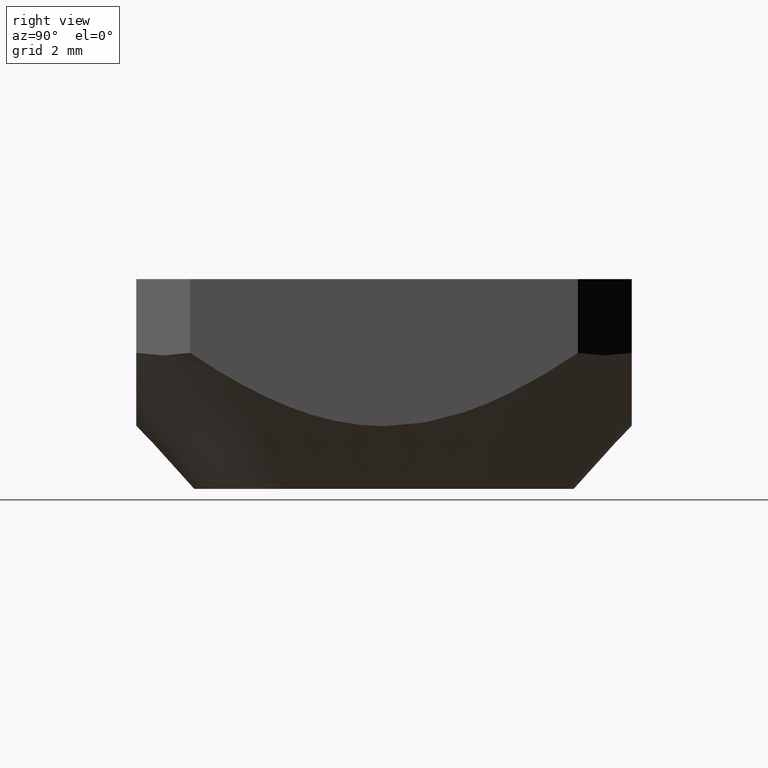
[diagram: clean part render]
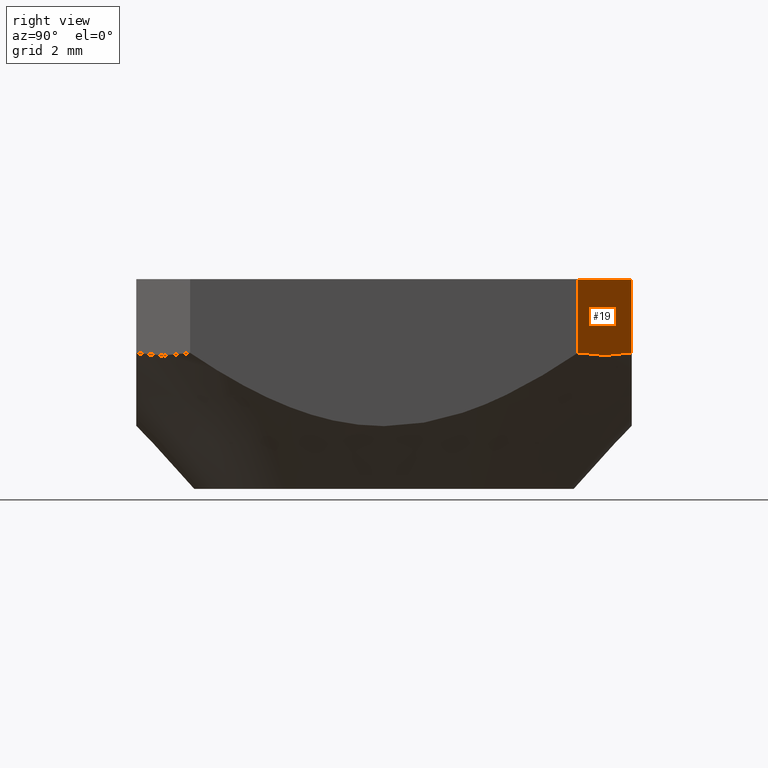
[diagram: same view with one face highlighted and labeled with its STEP entity id]
A machine part, right view. The second image highlights one B-rep face of the part: STEP entity #19.
In plain terms, the highlighted planar face has unit normal (0.7071, 0.7071, 0).
Its self-contained STEP definition (entity closure, byte-faithful):
#5 = CARTESIAN_POINT ( 'NONE',  ( 6.500000000000002665, 5.085786437626907741, 0.0000000000000000000 ) ) ;
#12 = CARTESIAN_POINT ( 'NONE',  ( 6.500000000012471801, 5.085786437614437716, -1.933334202284715309 ) ) ;
#19 = ADVANCED_FACE ( 'NONE', ( #497 ), #306, .T. ) ;
#34 = CARTESIAN_POINT ( 'NONE',  ( 6.500000000012471801, 5.085786437614437716, -1.933334202284715309 ) ) ;
#35 = CARTESIAN_POINT ( 'NONE',  ( 5.085786437626906853, 6.500000000000003553, 0.0000000000000000000 ) ) ;
#51 = EDGE_CURVE ( 'NONE', #155, #491, #305, .T. ) ;
#53 = ORIENTED_EDGE ( 'NONE', *, *, #118, .F. ) ;
#54 = DIRECTION ( 'NONE',  ( -0.7071067811865474617, 0.7071067811865474617, 0.0000000000000000000 ) ) ;
#118 = EDGE_CURVE ( 'NONE', #444, #155, #349, .T. ) ;
#136 = DIRECTION ( 'NONE',  ( -0.0000000000000000000, -0.0000000000000000000, 1.000000000000000000 ) ) ;
#143 = VECTOR ( 'NONE', #540, 1000.000000000000114 ) ;
#155 = VERTEX_POINT ( 'NONE', #281 ) ;
#165 = CARTESIAN_POINT ( 'NONE',  ( 5.557190958393293911, 6.028595479233616494, -2.021894486500614985 ) ) ;
#187 = VECTOR ( 'NONE', #557, 1000.000000000000000 ) ;
#197 = VERTEX_POINT ( 'NONE', #549 ) ;
#204 = CARTESIAN_POINT ( 'NONE',  ( 5.085786437677108474, 6.500000000012474466, -1.933334202242375177 ) ) ;
#240 = EDGE_CURVE ( 'NONE', #491, #197, #415, .T. ) ;
#245 = CARTESIAN_POINT ( 'NONE',  ( 5.085786437626906853, 6.500000000000003553, 0.0000000000000000000 ) ) ;
#281 = CARTESIAN_POINT ( 'NONE',  ( 6.500000000000000888, 5.085786437626908629, 0.0000000000000000000 ) ) ;
#297 = ORIENTED_EDGE ( 'NONE', *, *, #240, .F. ) ;
#305 = LINE ( 'NONE', #5, #143 ) ;
#306 = PLANE ( 'NONE',  #312 ) ;
#307 = ORIENTED_EDGE ( 'NONE', *, *, #341, .T. ) ;
#308 = CARTESIAN_POINT ( 'NONE',  ( 6.500000000000002665, 5.085786437626907741, 0.0000000000000000000 ) ) ;
#312 = AXIS2_PLACEMENT_3D ( 'NONE', #308, #451, #54 ) ;
#324 = EDGE_LOOP ( 'NONE', ( #400, #53, #307, #297 ) ) ;
#341 = EDGE_CURVE ( 'NONE', #444, #197, #509, .T. ) ;
#343 = CARTESIAN_POINT ( 'NONE',  ( 6.028595479215633546, 5.557190958371792888, -2.021894486489666409 ) ) ;
#349 = LINE ( 'NONE', #498, #502 ) ;
#400 = ORIENTED_EDGE ( 'NONE', *, *, #51, .F. ) ;
#415 = LINE ( 'NONE', #245, #187 ) ;
#444 = VERTEX_POINT ( 'NONE', #12 ) ;
#451 = DIRECTION ( 'NONE',  ( 0.7071067811865475727, 0.7071067811865475727, 0.0000000000000000000 ) ) ;
#491 = VERTEX_POINT ( 'NONE', #35 ) ;
#497 = FACE_OUTER_BOUND ( 'NONE', #324, .T. ) ;
#498 = CARTESIAN_POINT ( 'NONE',  ( 6.500000000000000888, 5.085786437626907741, 0.0000000000000000000 ) ) ;
#502 = VECTOR ( 'NONE', #136, 1000.000000000000000 ) ;
#509 = B_SPLINE_CURVE_WITH_KNOTS ( 'NONE', 3,
 ( #34, #343, #165, #204 ),
 .UNSPECIFIED., .F., .F.,
 ( 4, 4 ),
 ( 1.619525838437646925E-14, 0.002000000000007150572 ),
 .UNSPECIFIED. ) ;
#540 = DIRECTION ( 'NONE',  ( -0.7071067811865474617, 0.7071067811865474617, 0.0000000000000000000 ) ) ;
#549 = CARTESIAN_POINT ( 'NONE',  ( 5.085786437677108474, 6.500000000012474466, -1.933334202242375177 ) ) ;
#557 = DIRECTION ( 'NONE',  ( -0.0000000000000000000, 0.0000000000000000000, -1.000000000000000000 ) ) ;